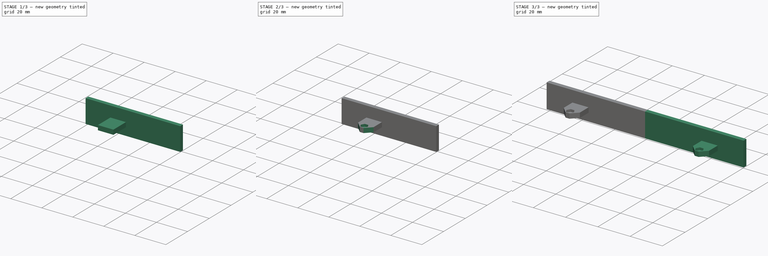
[diagram: build sequence overview — one tinted view per stage of 3, left to right]
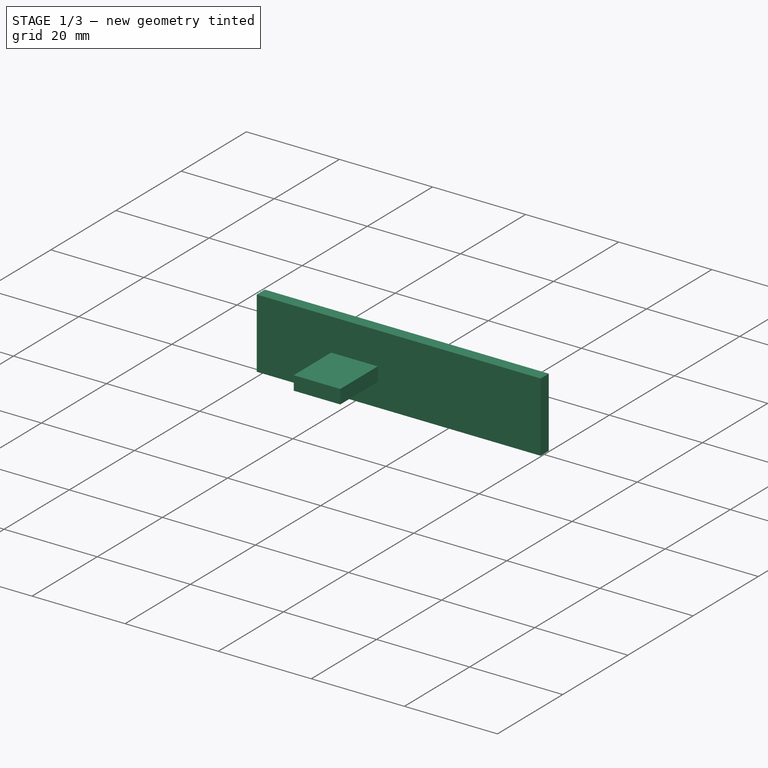
[diagram: stage 1 of 3 — iso view after this stage's code; geometry added in this stage tinted green]
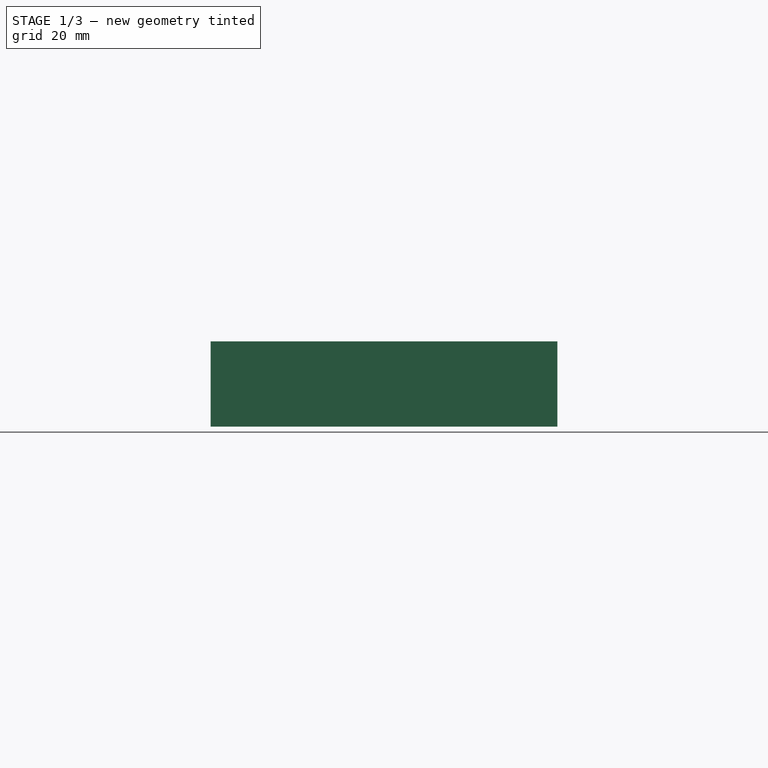
[diagram: stage 1 of 3 — front view after this stage's code; geometry added in this stage tinted green]
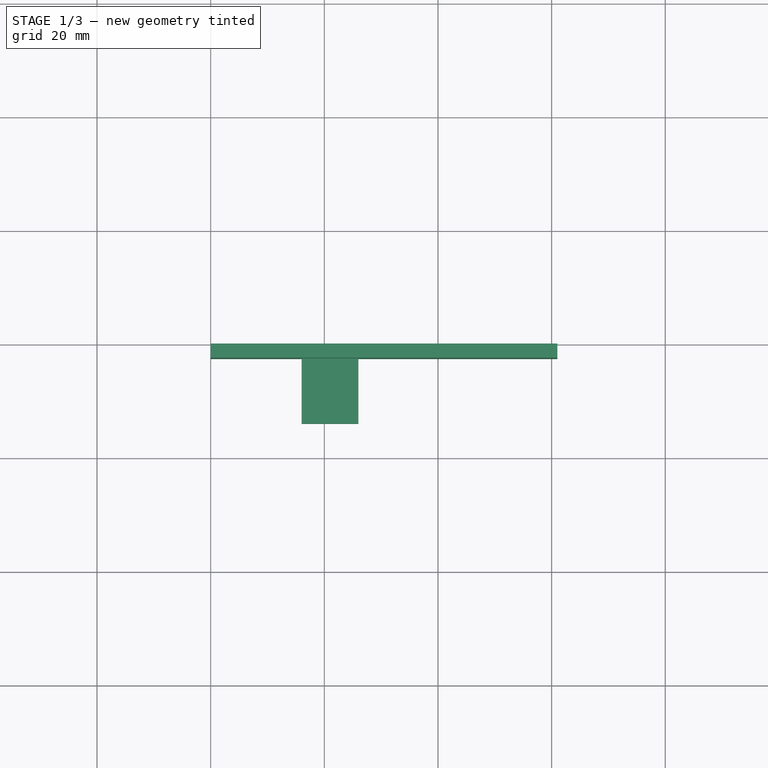
[diagram: stage 1 of 3 — top view after this stage's code; geometry added in this stage tinted green]
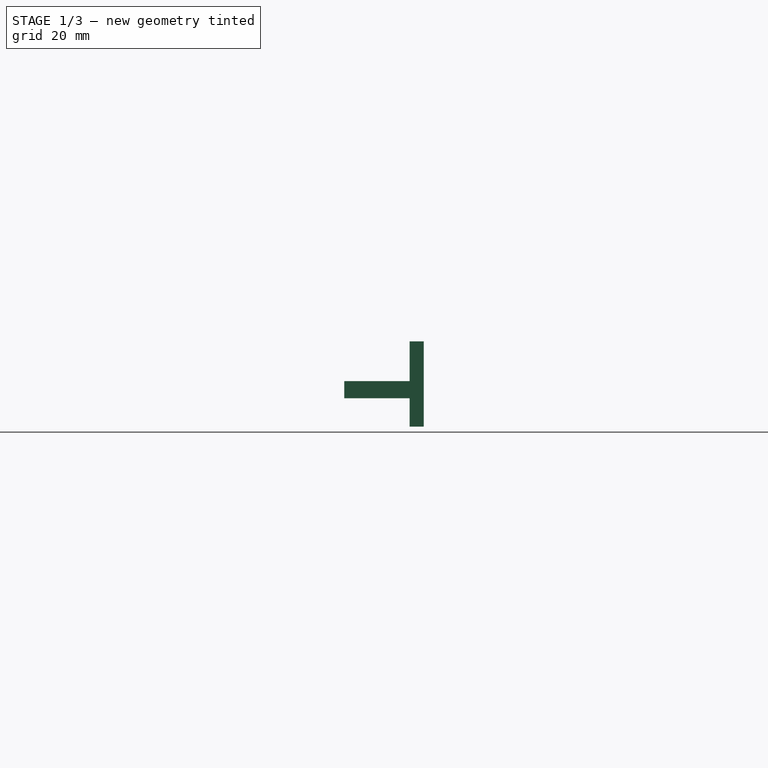
[diagram: stage 1 of 3 — right view after this stage's code; geometry added in this stage tinted green]
FCSTD DOCUMENT  (FreeCAD 0.17R13522 (Git))
Label: Pantalla trasera
License: All rights reserved
LicenseURL: http://en.wikipedia.org/wiki/All_rights_reserved
objects: Sketcher::SketchObject×5, PartDesign::Pocket×3, PartDesign::Pad×2, Part::Mirroring×1, Part::Fuse×1, Part::Feature×1
note: 18 computed .brp shape members not serialized (recipe doc carries the construction recipe); baked Part::Feature solids carry a one-line shape summary decoded from their .brp

FEATURE [Sketcher::SketchObject] Sketch
  MapMode = 5
  Placement = pos=(0,0,0) rot=(1,0,0;1.5708rad)
  sketch-geometry (4):
    g0: LineSegment StartX=0 StartY=0 StartZ=0 EndX=61 EndY=0 EndZ=0
    g1: LineSegment StartX=61 StartY=0 StartZ=0 EndX=61 EndY=15 EndZ=0
    g2: LineSegment StartX=61 StartY=15 StartZ=0 EndX=0 EndY=15 EndZ=0
    g3: LineSegment StartX=0 StartY=15 StartZ=0 EndX=0 EndY=0 EndZ=0
  constraints (11):
    c: Coincident(g0,g1)
    c: Coincident(g1,g2)
    c: Coincident(g2,g3)
    c: Coincident(g3,g0)
    c: Horizontal(g0)
    c: Horizontal(g2)
    c: Vertical(g1)
    c: Vertical(g3)
    c: Coincident(g0,g-1)
    c: DistanceX(g2,g2) = 61
    c: DistanceY(g3,g3) = 15
FEATURE [PartDesign::Pad] Pad
  Length = 2.5
  Length2 = 100
  Placement = pos=(0,0,0) rot=(1,0,0;1.5708rad)
  Profile = -> Sketch
  Type = 0
FEATURE [Sketcher::SketchObject] Sketch001
  ExternalGeometry = -> [Pad]
  MapMode = 5
  Placement = pos=(0,-2.5,0) rot=(1,0,0;1.5708rad)
  Support = -> [Pad]
  sketch-geometry (4):
    g0: LineSegment StartX=16 StartY=8 StartZ=0 EndX=26 EndY=8 EndZ=0
    g1: LineSegment StartX=26 StartY=8 StartZ=0 EndX=26 EndY=5 EndZ=0
    g2: LineSegment StartX=26 StartY=5 StartZ=0 EndX=16 EndY=5 EndZ=0
    g3: LineSegment StartX=16 StartY=5 StartZ=0 EndX=16 EndY=8 EndZ=0
  constraints (12):
    c: Coincident(g0,g1)
    c: Coincident(g1,g2)
    c: Coincident(g2,g3)
    c: Coincident(g3,g0)
    c: Horizontal(g0)
    c: Horizontal(g2)
    c: Vertical(g1)
    c: Vertical(g3)
    c: DistanceY(g1,g1) = 3
    c: DistanceY(g-1,g2) = 5
    c: DistanceX(g0,g0) = 10
    c: DistanceX(g1,g-4) = 35
FEATURE [PartDesign::Pad] Pad001
  Length = 11.5
  Length2 = 100
  Placement = pos=(0,0,0) rot=(1,0,0;1.5708rad)
  Profile = -> Sketch001
  Type = 0
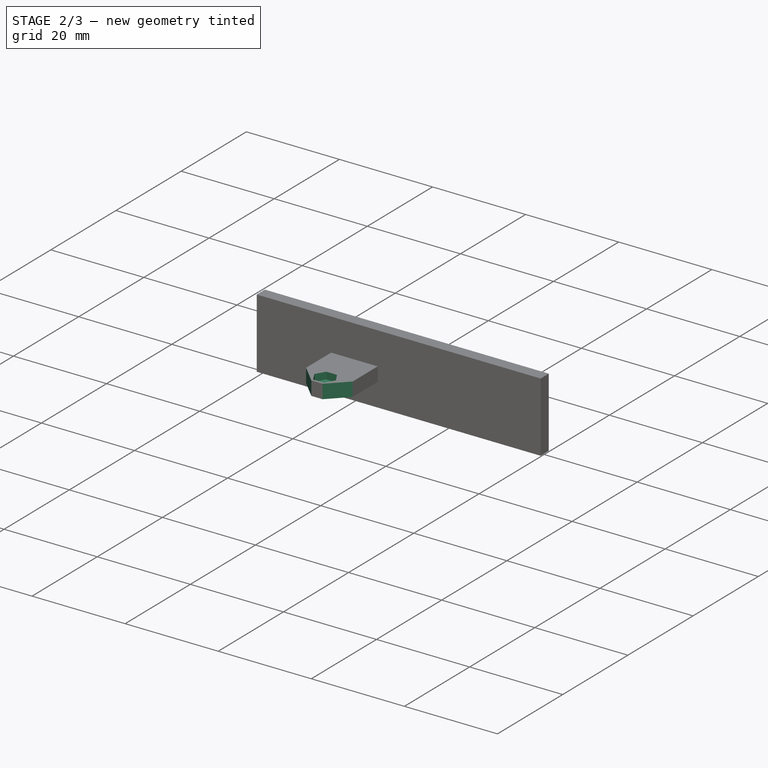
[diagram: stage 2 of 3 — iso view after this stage's code; geometry added in this stage tinted green]
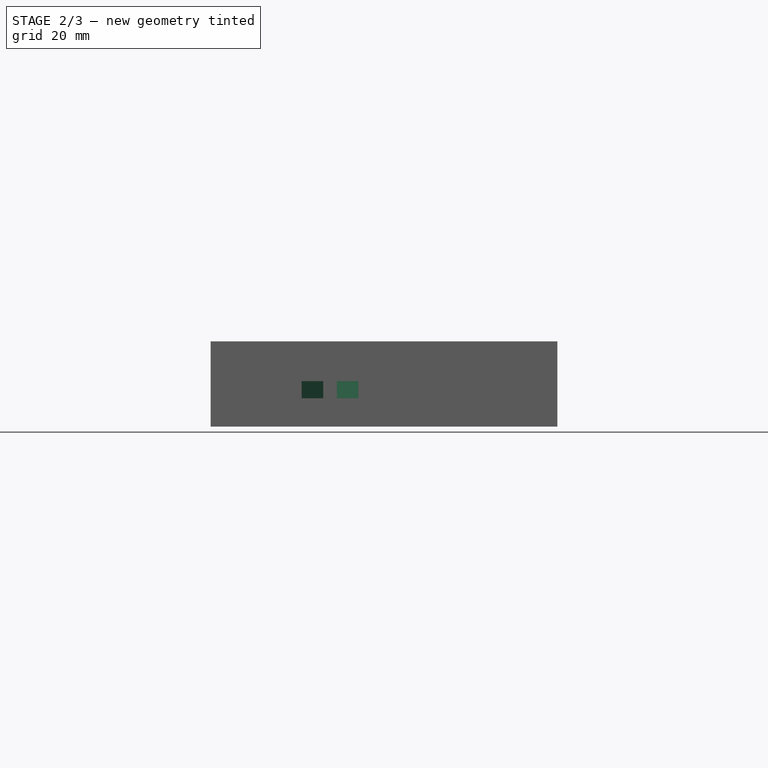
[diagram: stage 2 of 3 — front view after this stage's code; geometry added in this stage tinted green]
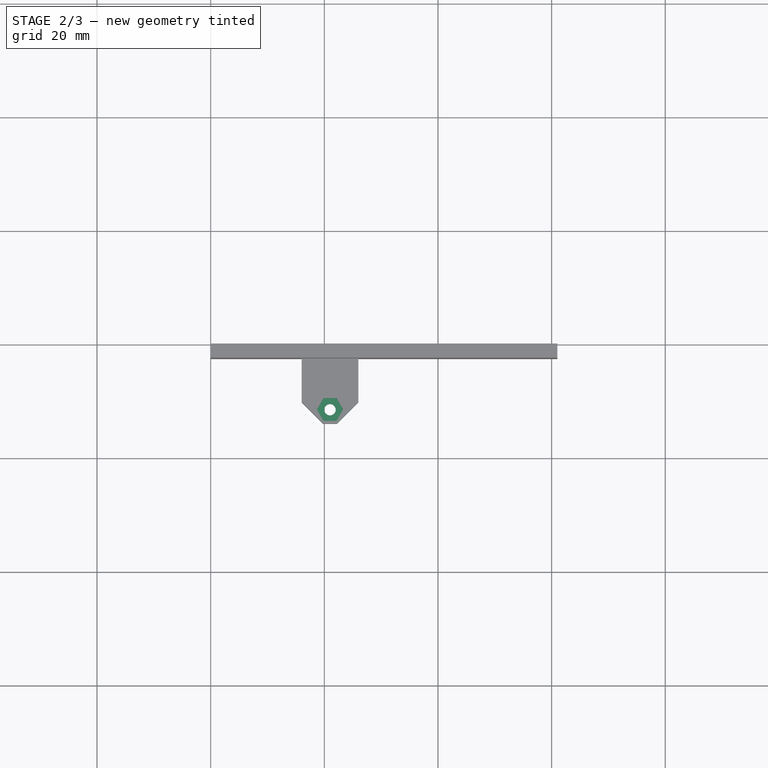
[diagram: stage 2 of 3 — top view after this stage's code; geometry added in this stage tinted green]
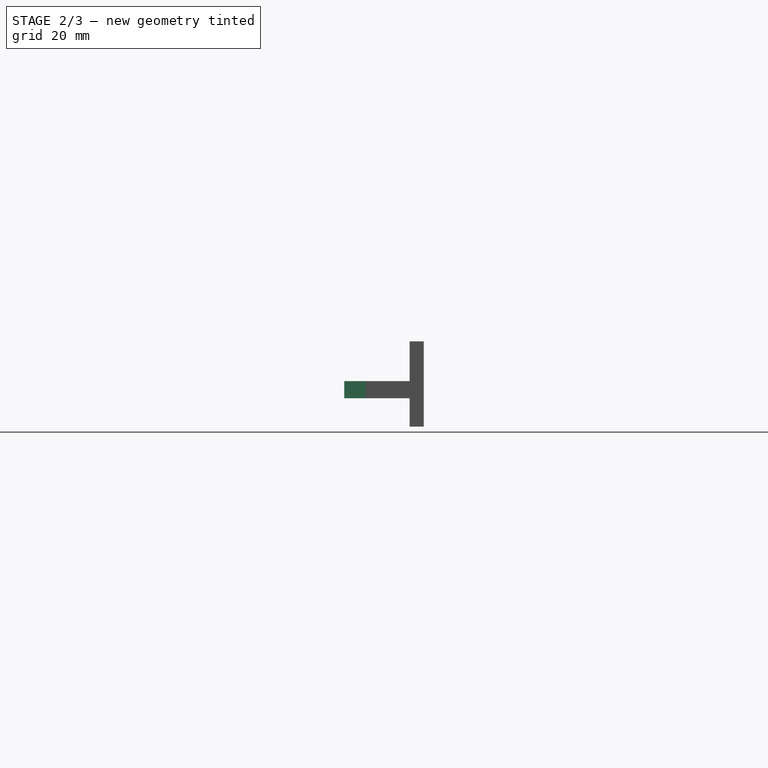
[diagram: stage 2 of 3 — right view after this stage's code; geometry added in this stage tinted green]
FEATURE [Sketcher::SketchObject] Sketch002
  ExternalGeometry = -> [Pad001]
  MapMode = 5
  Placement = pos=(0,0,8) rot=(0,0,1;3.14159rad)
  Support = -> [Pad001]
  sketch-geometry (2):
    g0: LineSegment [constr] StartX=-21 StartY=2.5 StartZ=0 EndX=-21 EndY=14 EndZ=0
    g1: Circle CenterX=-21 CenterY=11.5 CenterZ=0 NormalX=0 NormalY=0 NormalZ=1 AngleXU=0 Radius=1
  constraints (7):
    c: PointOnObject(g0,g-4)
    c: PointOnObject(g0,g-3)
    c: Vertical(g0)
    c: PointOnObject(g1,g0)
    c: Radius(g1) = 1
    c: DistanceY(g0,g1) = 9
    c: DistanceX(g0,g-3) = 5
FEATURE [PartDesign::Pocket] Pocket
  Length = 5
  Length2 = 100
  Placement = pos=(0,0,0) rot=(1,0,0;1.5708rad)
  Profile = -> Sketch002
  Type = 1
FEATURE [Sketcher::SketchObject] Sketch003
  ExternalGeometry = -> [Pocket]
  MapMode = 5
  Placement = pos=(0,0,8) rot=(0,0,1;3.14159rad)
  Support = -> [Pocket]
  sketch-geometry (6):
    g0: LineSegment StartX=-22.2 StartY=14 StartZ=0 EndX=-26 EndY=10.2 EndZ=0
    g1: LineSegment StartX=-19.8 StartY=14 StartZ=0 EndX=-16 EndY=10.2 EndZ=0
    g2: LineSegment StartX=-22.2 StartY=14 StartZ=0 EndX=-26 EndY=14 EndZ=0
    g3: LineSegment StartX=-26 StartY=14 StartZ=0 EndX=-26 EndY=10.2 EndZ=0
    g4: LineSegment StartX=-19.8 StartY=14 StartZ=0 EndX=-16 EndY=14 EndZ=0
    g5: LineSegment StartX=-16 StartY=14 StartZ=0 EndX=-16 EndY=10.2 EndZ=0
  constraints (16):
    c: PointOnObject(g0,g-3)
    c: PointOnObject(g1,g-3)
    c: Angle(g0,g-3) = 2.35619
    c: Angle(g-3,g1) = 2.35619
    c: DistanceX(g0,g1) = 2.4
    c: DistanceY(g1,g0) = 0
    c: Coincident(g2,g0)
    c: Coincident(g3,g0)
    c: Vertical(g3)
    c: Coincident(g4,g1)
    c: Coincident(g5,g1)
    c: Vertical(g5)
    c: Coincident(g3,g2)
    c: Coincident(g-3,g2)
    c: Coincident(g5,g4)
    c: Coincident(g4,g-3)
FEATURE [PartDesign::Pocket] Pocket001
  Length = 5
  Length2 = 100
  Placement = pos=(0,0,0) rot=(1,0,0;1.5708rad)
  Profile = -> Sketch003
  Type = 1
FEATURE [Sketcher::SketchObject] Sketch004
  ExternalGeometry = -> [Pocket001]
  MapMode = 5
  Placement = pos=(0,0,8) rot=(0,0,1;3.14159rad)
  Support = -> [Pocket001]
  sketch-geometry (7):
    g0: LineSegment StartX=-19.8453 StartY=9.5 StartZ=0 EndX=-18.6906 EndY=11.5 EndZ=0
    g1: LineSegment StartX=-18.6906 StartY=11.5 StartZ=0 EndX=-19.8453 EndY=13.5 EndZ=0
    g2: LineSegment StartX=-19.8453 StartY=13.5 StartZ=0 EndX=-22.1547 EndY=13.5 EndZ=0
    g3: LineSegment StartX=-22.1547 StartY=13.5 StartZ=0 EndX=-23.3094 EndY=11.5 EndZ=0
    g4: LineSegment StartX=-23.3094 StartY=11.5 StartZ=0 EndX=-22.1547 EndY=9.5 EndZ=0
    g5: LineSegment StartX=-22.1547 StartY=9.5 StartZ=0 EndX=-19.8453 EndY=9.5 EndZ=0
    g6: Circle [constr] CenterX=-21 CenterY=11.5 CenterZ=0 NormalX=0 NormalY=0 NormalZ=1 AngleXU=0 Radius=2.3094
  constraints (16):
    c: Coincident(g0,g1)
    c: Coincident(g1,g2)
    c: Coincident(g2,g3)
    c: Coincident(g3,g4)
    c: Coincident(g4,g5)
    c: Coincident(g5,g0)
    c: Equal(g0, g1-g5) x5
    c: PointOnObject(g0,g6)
    c: PointOnObject(g1,g6)
    c: PointOnObject(g2,g6)
    c: PointOnObject(g3,g6)
    c: PointOnObject(g4,g6)
    c: PointOnObject(g5,g6)
    c: Coincident(g6,g-3)
    c: Horizontal(g5)
    c: DistanceY(g0,g1) = 4
FEATURE [PartDesign::Pocket] Pocket002
  Length = 1.5
  Length2 = 100
  Placement = pos=(0,0,0) rot=(1,0,0;1.5708rad)
  Profile = -> Sketch004
  Type = 0
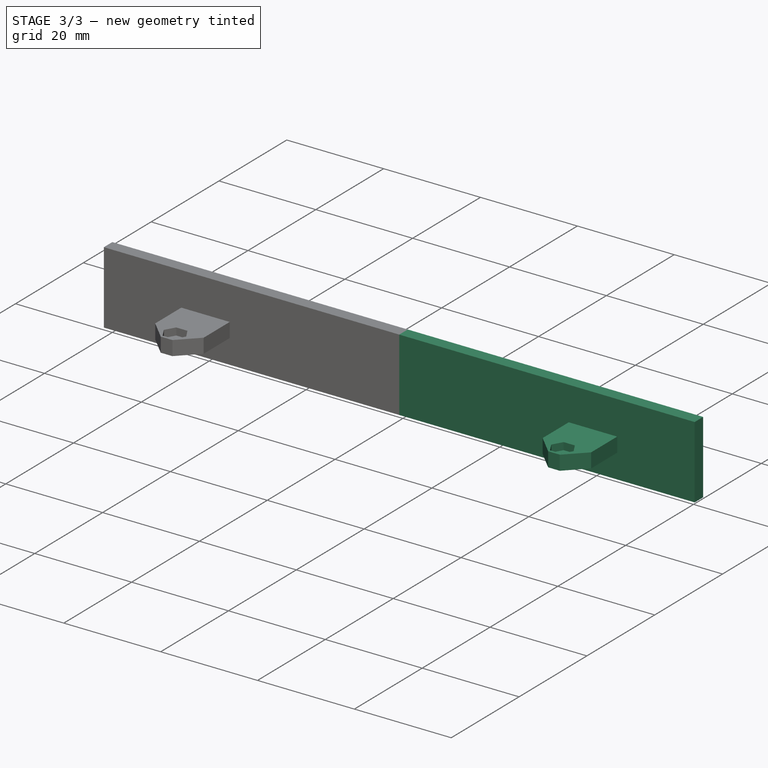
[diagram: stage 3 of 3 — iso view after this stage's code; geometry added in this stage tinted green]
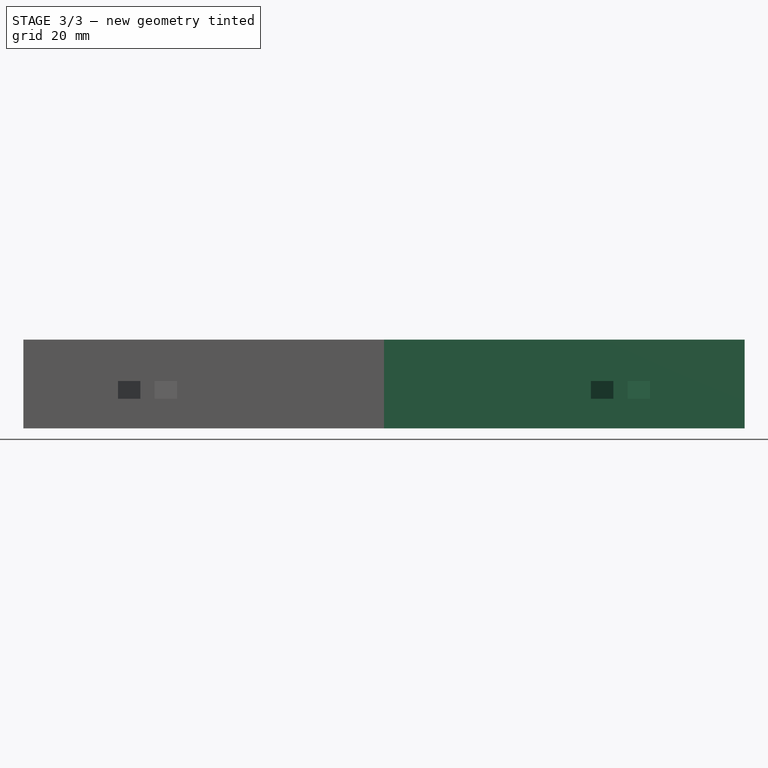
[diagram: stage 3 of 3 — front view after this stage's code; geometry added in this stage tinted green]
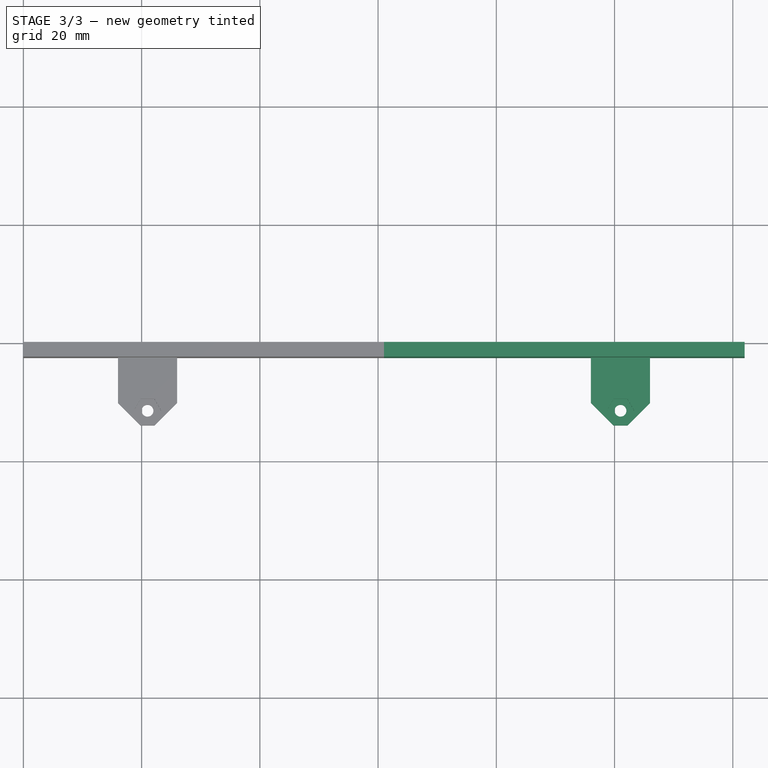
[diagram: stage 3 of 3 — top view after this stage's code; geometry added in this stage tinted green]
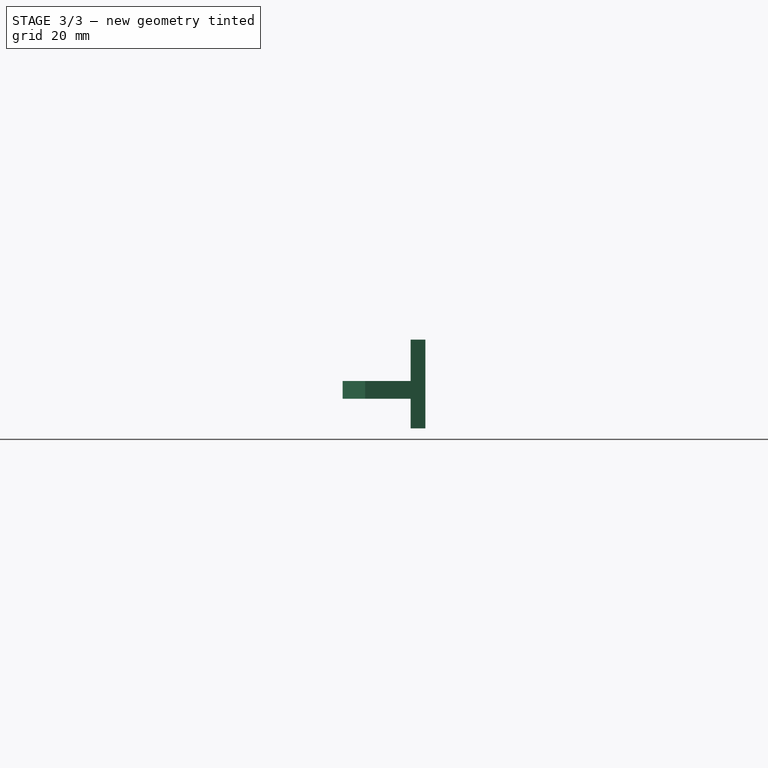
[diagram: stage 3 of 3 — right view after this stage's code; geometry added in this stage tinted green]
FEATURE [Part::Mirroring] Part__Mirroring  label="Pocket002 (Mirror #1)"
  Base = (0,0,0)
  Normal = (1,0,0)
  Placement = pos=(122,0,0) rot=(0,0,1;0rad)
  Source = -> Pocket002
FEATURE [Part::Fuse] Fusion
  Base = -> Pocket002
  Tool = -> Part__Mirroring
FEATURE [Part::Feature] Fusion001  label="Pantalla_trasera"
  shape: bbox 122 x 14 x 15 mm, 36 faces (baked)
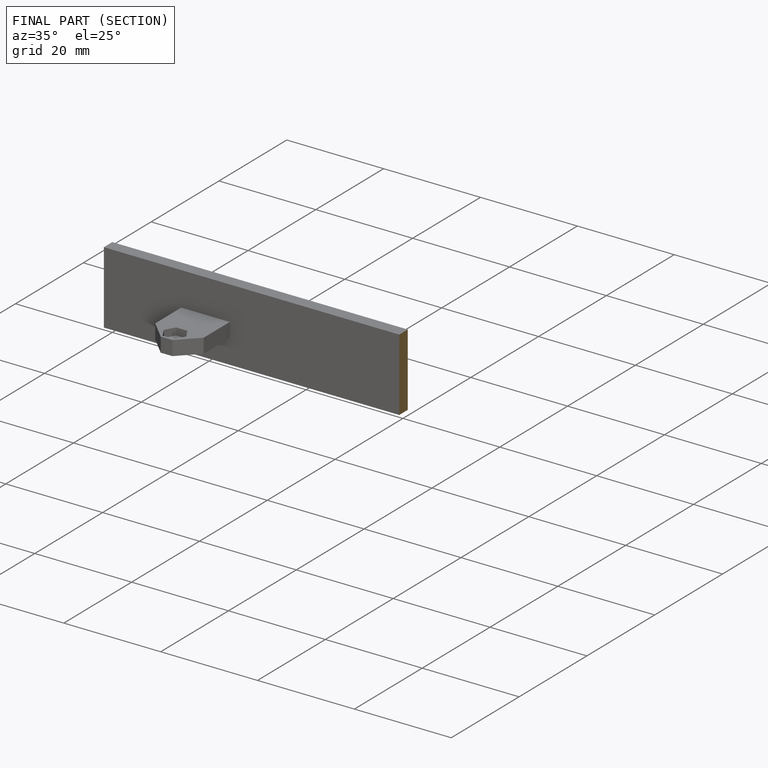
[diagram: finished part — half-section view (interior)]
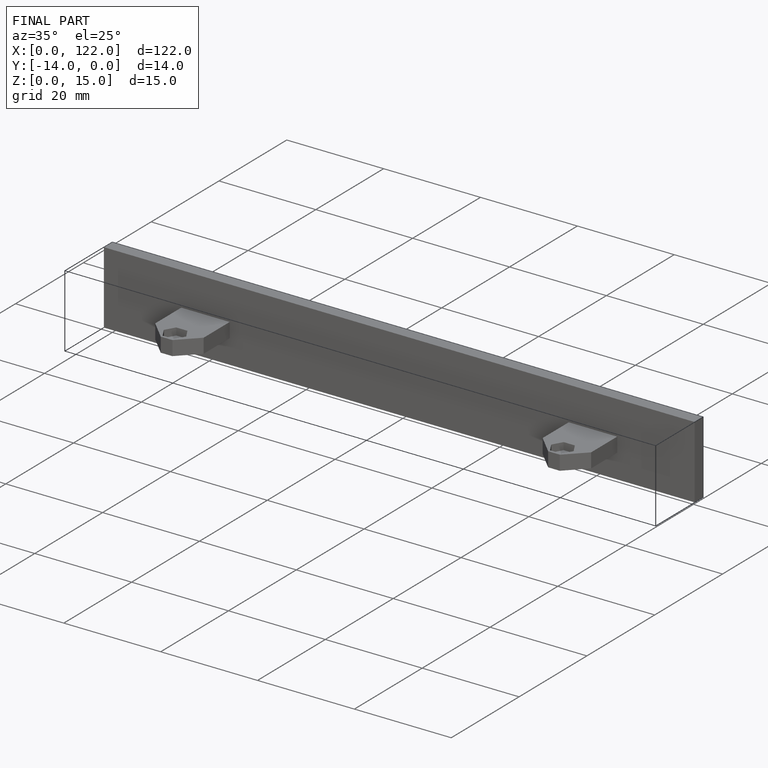
[diagram: finished part — iso view with bounding-box wireframe]
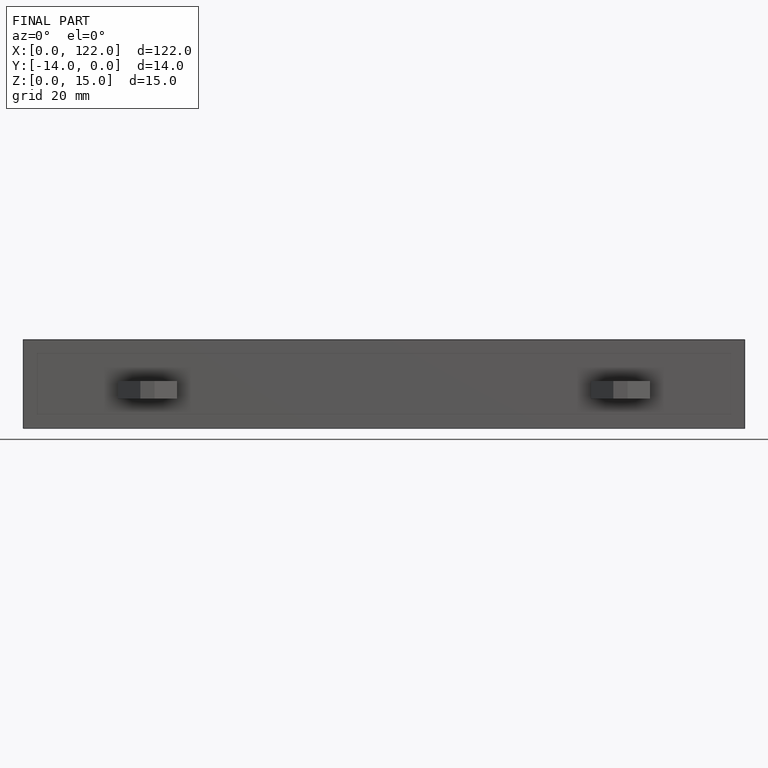
[diagram: finished part — front view with bounding-box wireframe]
